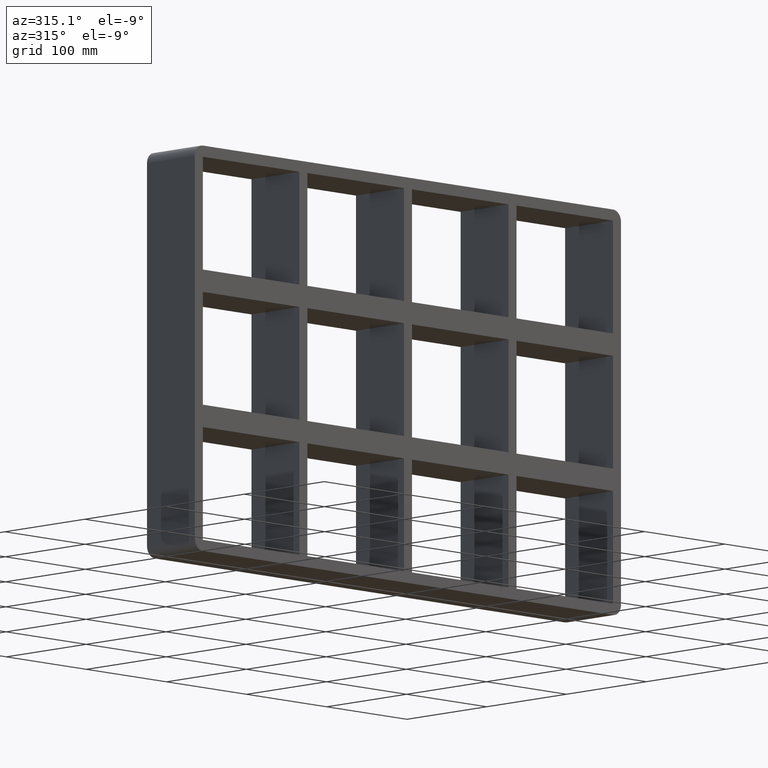
[diagram: clean part render]
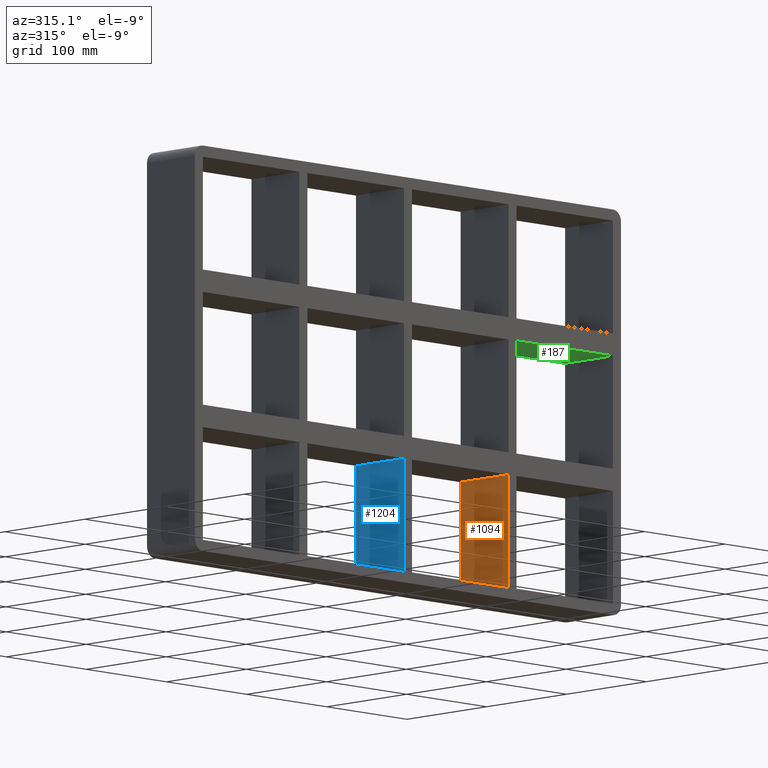
[diagram: same view with three faces highlighted in distinct colors, each labeled with its STEP entity id]
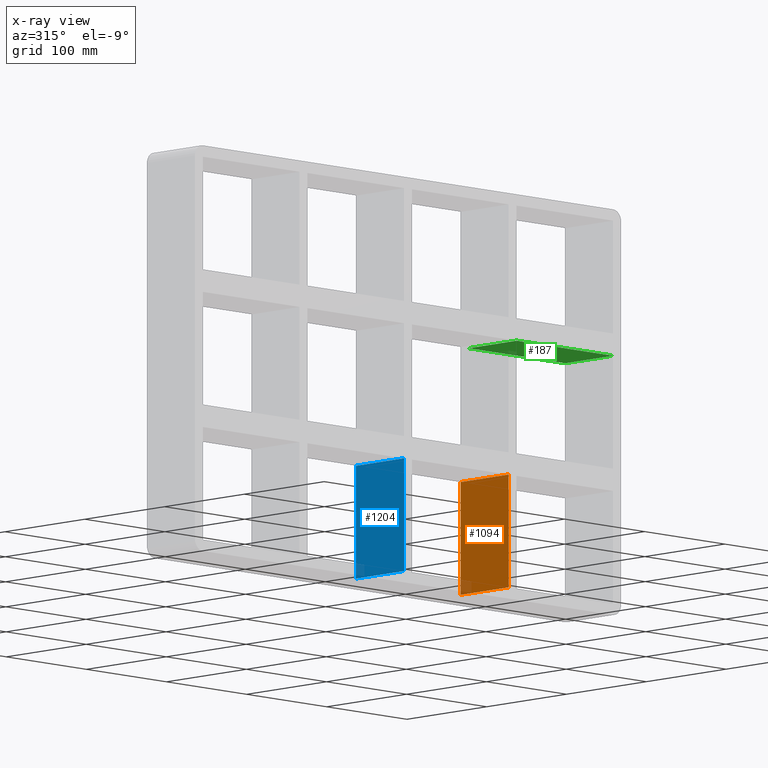
[diagram: x-ray of the same camera — body ghosted, the three highlighted faces saturated]
A machine part, auxiliary view with three faces highlighted in distinct colors.
The next image is the same camera in x-ray (body ghosted, the three faces saturated) — at least one of them is partly hidden behind the body in this view.
Their STEP definitions:

[orange] entity #1094 — the highlighted planar face has unit normal (-1, 0, 0).
#960=CARTESIAN_POINT('',(125.49999999999872,57.0,-171.50000000000003));
#961=VERTEX_POINT('',#960);
#962=CARTESIAN_POINT('',(125.49999999999869,57.0,-70.500000000009365));
#963=VERTEX_POINT('',#962);
#964=CARTESIAN_POINT('',(125.49999999999872,57.0,-171.50000000000003));
#965=DIRECTION('',(0.0,0.0,1.0));
#966=VECTOR('',#965,100.99999999999065);
#967=LINE('',#964,#966);
#968=EDGE_CURVE('',#961,#963,#967,.T.);
#1064=CARTESIAN_POINT('',(125.49999999999872,-3.0,-171.50000000000003));
#1065=DIRECTION('',(-1.0,0.0,0.0));
#1066=DIRECTION('',(0.0,0.0,1.0));
#1067=AXIS2_PLACEMENT_3D('',#1064,#1065,#1066);
#1068=PLANE('',#1067);
#1069=CARTESIAN_POINT('',(125.49999999999869,-3.0,-70.500000000009365));
#1070=VERTEX_POINT('',#1069);
#1071=CARTESIAN_POINT('',(125.49999999999868,57.0,-70.500000000009379));
#1072=DIRECTION('',(0.0,-1.0,0.0));
#1073=VECTOR('',#1072,60.0);
#1074=LINE('',#1071,#1073);
#1075=EDGE_CURVE('',#963,#1070,#1074,.T.);
#1076=ORIENTED_EDGE('',*,*,#1075,.F.);
#1077=ORIENTED_EDGE('',*,*,#968,.F.);
#1078=CARTESIAN_POINT('',(125.49999999999872,-3.0,-171.50000000000003));
#1079=VERTEX_POINT('',#1078);
#1080=CARTESIAN_POINT('',(125.49999999999872,-3.0,-171.50000000000003));
#1081=DIRECTION('',(0.0,1.0,0.0));
#1082=VECTOR('',#1081,60.000000000000007);
#1083=LINE('',#1080,#1082);
#1084=EDGE_CURVE('',#1079,#961,#1083,.T.);
#1085=ORIENTED_EDGE('',*,*,#1084,.F.);
#1086=CARTESIAN_POINT('',(125.49999999999872,-3.0,-171.50000000000003));
#1087=DIRECTION('',(0.0,0.0,1.0));
#1088=VECTOR('',#1087,100.99999999999065);
#1089=LINE('',#1086,#1088);
#1090=EDGE_CURVE('',#1079,#1070,#1089,.T.);
#1091=ORIENTED_EDGE('',*,*,#1090,.T.);
#1092=EDGE_LOOP('',(#1076,#1077,#1085,#1091));
#1093=FACE_OUTER_BOUND('',#1092,.T.);
#1094=ADVANCED_FACE('',(#1093),#1068,.T.);

[blue] entity #1204 — the highlighted planar face has unit normal (-1, 0, 0).
#926=CARTESIAN_POINT('',(-5.000000000001279,57.0,-171.50000000000003));
#927=VERTEX_POINT('',#926);
#928=CARTESIAN_POINT('',(-5.000000000001315,57.0,-70.500000000009422));
#929=VERTEX_POINT('',#928);
#930=CARTESIAN_POINT('',(-5.000000000001279,57.0,-171.50000000000003));
#931=DIRECTION('',(0.0,0.0,1.0));
#932=VECTOR('',#931,100.99999999999059);
#933=LINE('',#930,#932);
#934=EDGE_CURVE('',#927,#929,#933,.T.);
#1174=CARTESIAN_POINT('',(-5.000000000001279,-3.0,-171.50000000000003));
#1175=DIRECTION('',(-1.0,0.0,0.0));
#1176=DIRECTION('',(0.0,0.0,1.0));
#1177=AXIS2_PLACEMENT_3D('',#1174,#1175,#1176);
#1178=PLANE('',#1177);
#1179=CARTESIAN_POINT('',(-5.000000000001315,-3.0,-70.500000000009422));
#1180=VERTEX_POINT('',#1179);
#1181=CARTESIAN_POINT('',(-5.000000000001315,57.0,-70.500000000009408));
#1182=DIRECTION('',(0.0,-1.0,0.0));
#1183=VECTOR('',#1182,60.0);
#1184=LINE('',#1181,#1183);
#1185=EDGE_CURVE('',#929,#1180,#1184,.T.);
#1186=ORIENTED_EDGE('',*,*,#1185,.F.);
#1187=ORIENTED_EDGE('',*,*,#934,.F.);
#1188=CARTESIAN_POINT('',(-5.000000000001279,-3.0,-171.50000000000003));
#1189=VERTEX_POINT('',#1188);
#1190=CARTESIAN_POINT('',(-5.000000000001279,-3.0,-171.50000000000003));
#1191=DIRECTION('',(0.0,1.0,0.0));
#1192=VECTOR('',#1191,60.000000000000007);
#1193=LINE('',#1190,#1192);
#1194=EDGE_CURVE('',#1189,#927,#1193,.T.);
#1195=ORIENTED_EDGE('',*,*,#1194,.F.);
#1196=CARTESIAN_POINT('',(-5.000000000001279,-3.0,-171.50000000000003));
#1197=DIRECTION('',(0.0,0.0,1.0));
#1198=VECTOR('',#1197,100.99999999999059);
#1199=LINE('',#1196,#1198);
#1200=EDGE_CURVE('',#1189,#1180,#1199,.T.);
#1201=ORIENTED_EDGE('',*,*,#1200,.T.);
#1202=EDGE_LOOP('',(#1186,#1187,#1195,#1201));
#1203=FACE_OUTER_BOUND('',#1202,.T.);
#1204=ADVANCED_FACE('',(#1203),#1178,.T.);

[green] entity #187 — the highlighted planar face has unit normal (0, 0, -1).
#148=CARTESIAN_POINT('',(256.00000000000364,-3.0,50.499999999990678));
#149=DIRECTION('',(0.0,0.0,-1.0));
#150=DIRECTION('',(-1.0,0.0,0.0));
#151=AXIS2_PLACEMENT_3D('',#148,#149,#150);
#152=PLANE('',#151);
#153=CARTESIAN_POINT('',(135.50000000000728,57.0,50.499999999990649));
#154=VERTEX_POINT('',#153);
#155=CARTESIAN_POINT('',(135.50000000000728,-3.0,50.499999999990649));
#156=VERTEX_POINT('',#155);
#157=CARTESIAN_POINT('',(135.50000000000728,57.0,50.499999999990656));
#158=DIRECTION('',(0.0,-1.0,0.0));
#159=VECTOR('',#158,60.0);
#160=LINE('',#157,#159);
#161=EDGE_CURVE('',#154,#156,#160,.T.);
#162=ORIENTED_EDGE('',*,*,#161,.F.);
#163=CARTESIAN_POINT('',(256.00000000000364,57.0,50.499999999990678));
#164=VERTEX_POINT('',#163);
#165=CARTESIAN_POINT('',(256.00000000000364,57.0,50.499999999990678));
#166=DIRECTION('',(-1.0,0.0,0.0));
#167=VECTOR('',#166,120.49999999999636);
#168=LINE('',#165,#167);
#169=EDGE_CURVE('',#164,#154,#168,.T.);
#170=ORIENTED_EDGE('',*,*,#169,.F.);
#171=CARTESIAN_POINT('',(256.00000000000364,-3.0,50.499999999990678));
#172=VERTEX_POINT('',#171);
#173=CARTESIAN_POINT('',(256.00000000000006,-3.0,50.499999999990692));
#174=DIRECTION('',(0.0,1.0,0.0));
#175=VECTOR('',#174,60.000000000000007);
#176=LINE('',#173,#175);
#177=EDGE_CURVE('',#172,#164,#176,.T.);
#178=ORIENTED_EDGE('',*,*,#177,.F.);
#179=CARTESIAN_POINT('',(256.00000000000364,-3.0,50.499999999990678));
#180=DIRECTION('',(-1.0,0.0,0.0));
#181=VECTOR('',#180,120.49999999999636);
#182=LINE('',#179,#181);
#183=EDGE_CURVE('',#172,#156,#182,.T.);
#184=ORIENTED_EDGE('',*,*,#183,.T.);
#185=EDGE_LOOP('',(#162,#170,#178,#184));
#186=FACE_OUTER_BOUND('',#185,.T.);
#187=ADVANCED_FACE('',(#186),#152,.T.);